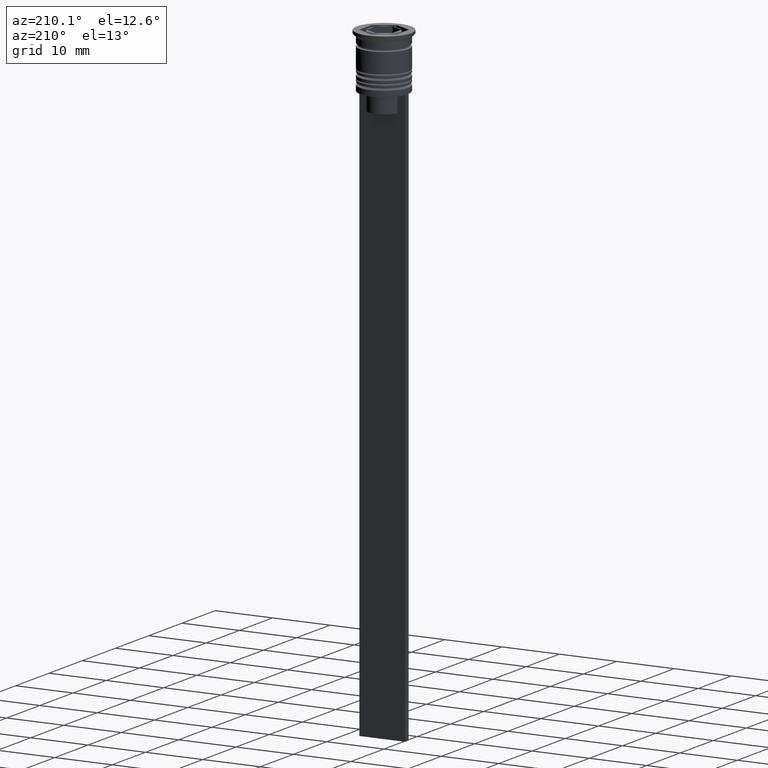
[diagram: clean part render]
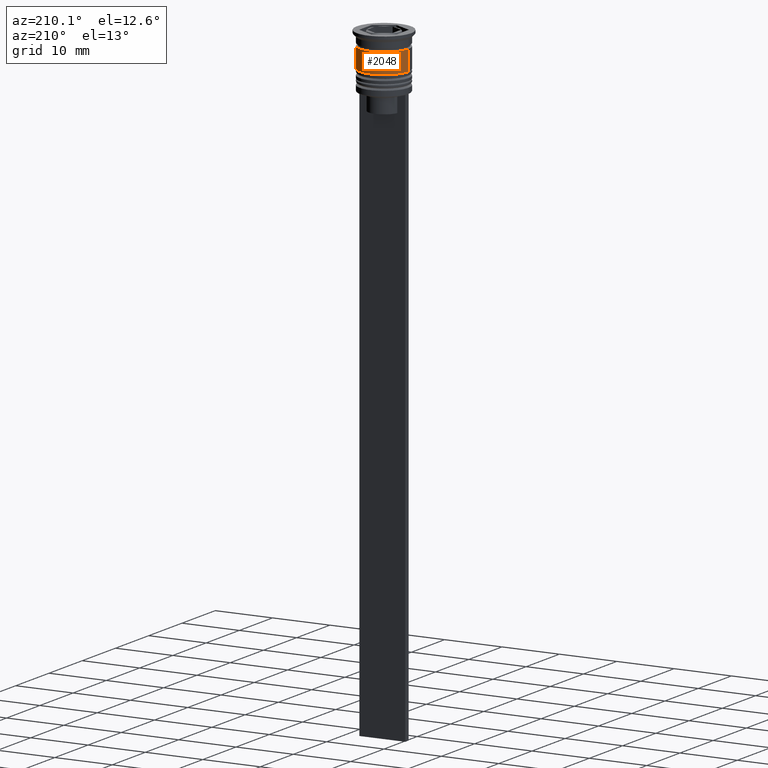
[diagram: same view with one face highlighted and labeled with its STEP entity id]
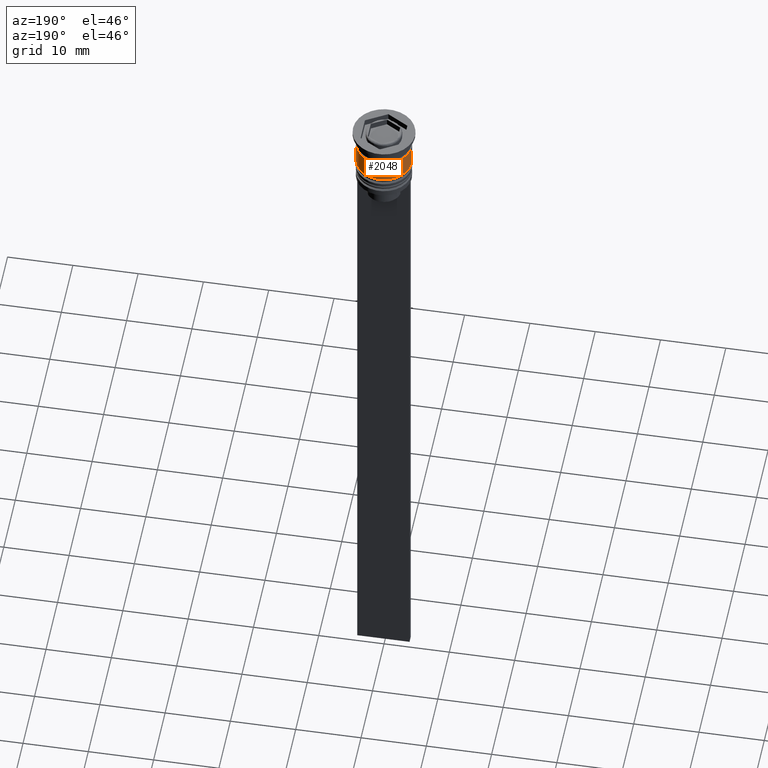
[diagram: same view with one face highlighted and labeled with its STEP entity id]
A machine part, auxiliary view. The second image highlights one B-rep face of the part: STEP entity #2048.
A second angle (auxiliary view) of the same face is appended — the face is thin or edge-on in the first view.
In plain terms, the highlighted cylindrical surface (edge-blend (fillet) strip) has radius 4.25 mm, axis along (-0, -0, 1).
Its self-contained STEP definition (entity closure, byte-faithful):
#1 = EDGE_CURVE ( 'NONE', #1427, #373, #1140, .T. ) ;
#9 = ORIENTED_EDGE ( 'NONE', *, *, #2268, .T. ) ;
#44 = FACE_OUTER_BOUND ( 'NONE', #1200, .T. ) ;
#137 = CIRCLE ( 'NONE', #1717, 4.250000000000000888 ) ;
#151 = AXIS2_PLACEMENT_3D ( 'NONE', #416, #1556, #1326 ) ;
#226 = ORIENTED_EDGE ( 'NONE', *, *, #1, .F. ) ;
#248 = DIRECTION ( 'NONE',  ( -0.000000000000000000, -0.000000000000000000, 1.000000000000000000 ) ) ;
#255 = CARTESIAN_POINT ( 'NONE',  ( -4.250000000000000000, 5.204748896376250699E-16, -2.500000000000000000 ) ) ;
#271 = CARTESIAN_POINT ( 'NONE',  ( 0.000000000000000000, 0.000000000000000000, -6.000000000000000000 ) ) ;
#276 = CARTESIAN_POINT ( 'NONE',  ( 0.000000000000000000, 0.000000000000000000, -2.500000000000000000 ) ) ;
#295 = DIRECTION ( 'NONE',  ( -0.000000000000000000, -0.000000000000000000, 1.000000000000000000 ) ) ;
#373 = VERTEX_POINT ( 'NONE', #255 ) ;
#379 = EDGE_CURVE ( 'NONE', #523, #2113, #137, .T. ) ;
#389 = CARTESIAN_POINT ( 'NONE',  ( 4.250000000000000000, 0.000000000000000000, 0.000000000000000000 ) ) ;
#406 = DIRECTION ( 'NONE',  ( 1.000000000000000000, 0.000000000000000000, 0.000000000000000000 ) ) ;
#416 = CARTESIAN_POINT ( 'NONE',  ( 0.000000000000000000, 0.000000000000000000, 0.000000000000000000 ) ) ;
#522 = CARTESIAN_POINT ( 'NONE',  ( 4.250000000000000000, 0.000000000000000000, -2.500000000000000000 ) ) ;
#523 = VERTEX_POINT ( 'NONE', #1999 ) ;
#612 = CARTESIAN_POINT ( 'NONE',  ( -4.250000000000000888, 5.204748896376251685E-16, -6.000000000000000000 ) ) ;
#643 = DIRECTION ( 'NONE',  ( -0.000000000000000000, -0.000000000000000000, 1.000000000000000000 ) ) ;
#748 = EDGE_CURVE ( 'NONE', #523, #1427, #2043, .T. ) ;
#761 = ORIENTED_EDGE ( 'NONE', *, *, #748, .F. ) ;
#785 = ORIENTED_EDGE ( 'NONE', *, *, #379, .T. ) ;
#1079 = VECTOR ( 'NONE', #1518, 1000.000000000000000 ) ;
#1140 = CIRCLE ( 'NONE', #1415, 4.250000000000000000 ) ;
#1182 = CARTESIAN_POINT ( 'NONE',  ( -4.250000000000000000, 5.204748896376250699E-16, 0.000000000000000000 ) ) ;
#1200 = EDGE_LOOP ( 'NONE', ( #785, #9, #226, #761 ) ) ;
#1326 = DIRECTION ( 'NONE',  ( 1.000000000000000000, 0.000000000000000000, 0.000000000000000000 ) ) ;
#1415 = AXIS2_PLACEMENT_3D ( 'NONE', #276, #248, #406 ) ;
#1427 = VERTEX_POINT ( 'NONE', #522 ) ;
#1518 = DIRECTION ( 'NONE',  ( -0.000000000000000000, -0.000000000000000000, 1.000000000000000000 ) ) ;
#1556 = DIRECTION ( 'NONE',  ( -0.000000000000000000, -0.000000000000000000, 1.000000000000000000 ) ) ;
#1708 = CYLINDRICAL_SURFACE ( 'NONE', #151, 4.250000000000000000 ) ;
#1717 = AXIS2_PLACEMENT_3D ( 'NONE', #271, #295, #1736 ) ;
#1736 = DIRECTION ( 'NONE',  ( 1.000000000000000000, 0.000000000000000000, 0.000000000000000000 ) ) ;
#1878 = VECTOR ( 'NONE', #643, 1000.000000000000000 ) ;
#1882 = LINE ( 'NONE', #1182, #1079 ) ;
#1999 = CARTESIAN_POINT ( 'NONE',  ( 4.250000000000000888, 0.000000000000000000, -6.000000000000000000 ) ) ;
#2043 = LINE ( 'NONE', #389, #1878 ) ;
#2048 = ADVANCED_FACE ( 'NONE', ( #44 ), #1708, .T. ) ;
#2113 = VERTEX_POINT ( 'NONE', #612 ) ;
#2268 = EDGE_CURVE ( 'NONE', #2113, #373, #1882, .T. ) ;